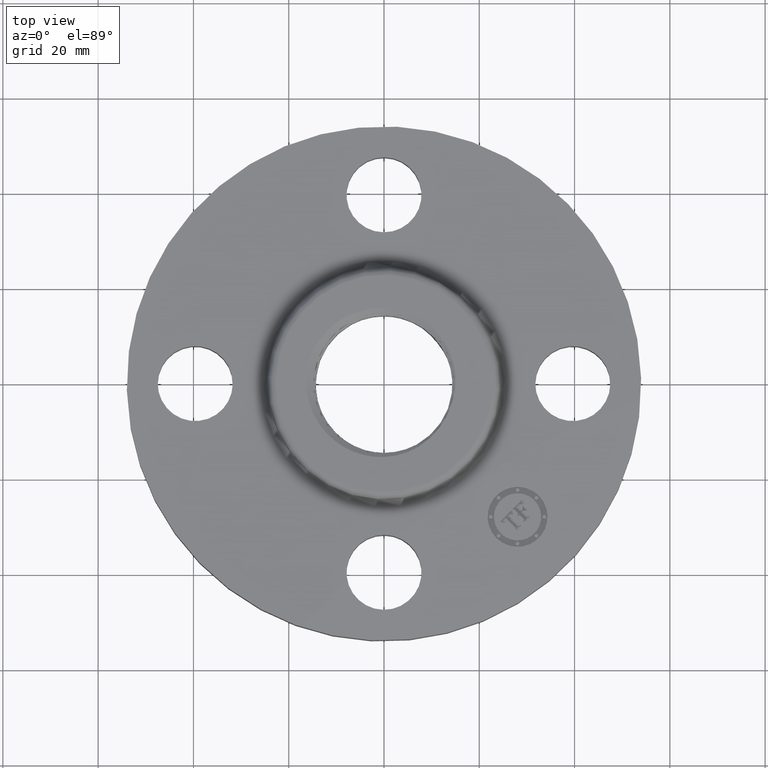
[diagram: clean part render]
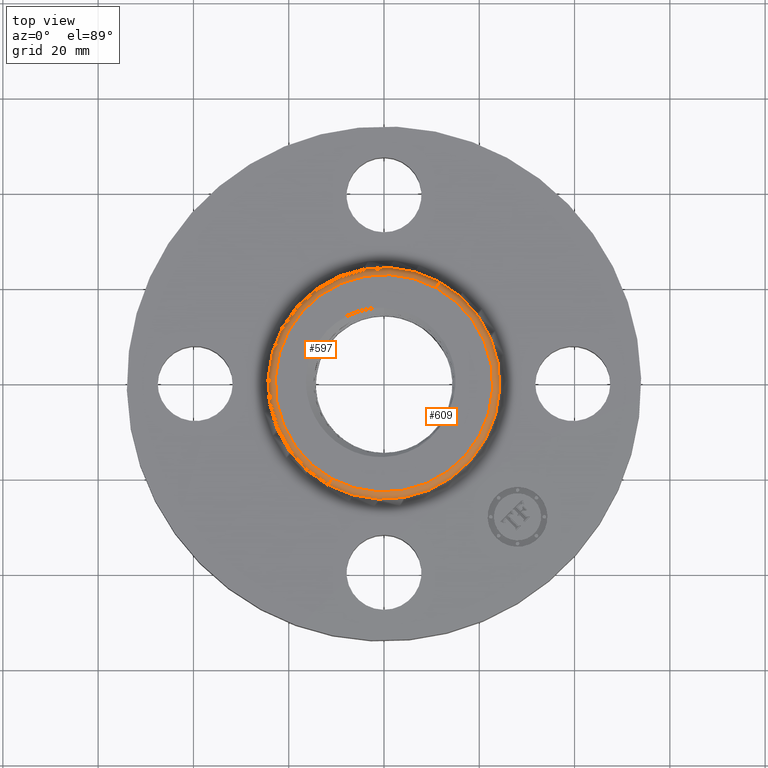
[diagram: same view with one multi-face feature highlighted, each face labeled with its STEP entity id]
A machine part, top view. The highlighted faces form ONE feature: a constant-radius fillet chain: 2 tangent blend faces with common blend radius 1.524 mm. The faces share edges in the B-rep.
Their STEP definitions:
[1] entity #597 (Torus):
#181=AXIS2_PLACEMENT_3D('Circle Axis2P3D',#179,#180,$) ;
#570=AXIS2_PLACEMENT_3D('Torus Axis2P3D',#567,#568,#569) ;
#574=AXIS2_PLACEMENT_3D('Circle Axis2P3D',#572,#573,$) ;
#583=AXIS2_PLACEMENT_3D('Circle Axis2P3D',#581,#582,$) ;
#588=AXIS2_PLACEMENT_3D('Circle Axis2P3D',#586,#587,$) ;
#174=CARTESIAN_POINT('Vertex',(0.430761345967,0.788503354781,0.620000000002)) ;
#176=CARTESIAN_POINT('Vertex',(-0.430761345967,-0.788503354781,0.620000000002)) ;
#179=CARTESIAN_POINT('Axis2P3D Location',(0.,0.,0.620000000002)) ;
#567=CARTESIAN_POINT('Axis2P3D Location',(0.,0.,0.560000000002)) ;
#572=CARTESIAN_POINT('Axis2P3D Location',(0.,0.,0.570418890662)) ;
#576=CARTESIAN_POINT('Vertex',(-0.459089865212,-0.840358361433,0.570418890662)) ;
#578=CARTESIAN_POINT('Vertex',(0.459089865212,0.840358361433,0.570418890662)) ;
#581=CARTESIAN_POINT('Axis2P3D Location',(-0.430761345967,-0.788503354781,0.560000000002)) ;
#586=CARTESIAN_POINT('Axis2P3D Location',(0.430761345967,0.788503354781,0.560000000002)) ;
#180=DIRECTION('Axis2P3D Direction',(0.,0.,-0.0393700787402)) ;
#568=DIRECTION('Axis2P3D Direction',(0.,0.,-0.0393700787402)) ;
#569=DIRECTION('Axis2P3D XDirection',(0.0188750212049,0.0345504945626,0.)) ;
#573=DIRECTION('Axis2P3D Direction',(0.,0.,-0.0393700787402)) ;
#582=DIRECTION('Axis2P3D Direction',(0.0345504945626,-0.0188750212049,0.)) ;
#587=DIRECTION('Axis2P3D Direction',(-0.0345504945626,0.0188750212049,0.)) ;
#592=ORIENTED_EDGE('',*,*,#580,.F.) ;
#593=ORIENTED_EDGE('',*,*,#585,.T.) ;
#594=ORIENTED_EDGE('',*,*,#183,.T.) ;
#595=ORIENTED_EDGE('',*,*,#590,.F.) ;
#597=ADVANCED_FACE('PartBody',(#596),#571,.T.) ;
#182=CIRCLE('generated circle',#181,0.898494784448) ;
#575=CIRCLE('generated circle',#574,0.957583249629) ;
#584=CIRCLE('generated circle',#583,0.0600000000002) ;
#589=CIRCLE('generated circle',#588,0.0600000000002) ;
#571=TOROIDAL_SURFACE('homeo Torus',#570,0.898494784448,0.0600000000002) ;
#183=EDGE_CURVE('',#177,#175,#182,.T.) ;
#580=EDGE_CURVE('',#577,#579,#575,.T.) ;
#585=EDGE_CURVE('',#577,#177,#584,.F.) ;
#590=EDGE_CURVE('',#579,#175,#589,.F.) ;
#591=EDGE_LOOP('',(#592,#593,#594,#595)) ;
#596=FACE_OUTER_BOUND('',#591,.T.) ;
#175=VERTEX_POINT('',#174) ;
#177=VERTEX_POINT('',#176) ;
#577=VERTEX_POINT('',#576) ;
#579=VERTEX_POINT('',#578) ;
[2] entity #609 (Torus):
#172=AXIS2_PLACEMENT_3D('Circle Axis2P3D',#170,#171,$) ;
#570=AXIS2_PLACEMENT_3D('Torus Axis2P3D',#567,#568,#569) ;
#583=AXIS2_PLACEMENT_3D('Circle Axis2P3D',#581,#582,$) ;
#588=AXIS2_PLACEMENT_3D('Circle Axis2P3D',#586,#587,$) ;
#600=AXIS2_PLACEMENT_3D('Circle Axis2P3D',#598,#599,$) ;
#170=CARTESIAN_POINT('Axis2P3D Location',(0.,0.,0.620000000002)) ;
#174=CARTESIAN_POINT('Vertex',(0.430761345967,0.788503354781,0.620000000002)) ;
#176=CARTESIAN_POINT('Vertex',(-0.430761345967,-0.788503354781,0.620000000002)) ;
#567=CARTESIAN_POINT('Axis2P3D Location',(0.,0.,0.560000000002)) ;
#576=CARTESIAN_POINT('Vertex',(-0.459089865212,-0.840358361433,0.570418890662)) ;
#578=CARTESIAN_POINT('Vertex',(0.459089865212,0.840358361433,0.570418890662)) ;
#581=CARTESIAN_POINT('Axis2P3D Location',(-0.430761345967,-0.788503354781,0.560000000002)) ;
#586=CARTESIAN_POINT('Axis2P3D Location',(0.430761345967,0.788503354781,0.560000000002)) ;
#598=CARTESIAN_POINT('Axis2P3D Location',(0.,0.,0.570418890662)) ;
#171=DIRECTION('Axis2P3D Direction',(0.,0.,-0.0393700787402)) ;
#568=DIRECTION('Axis2P3D Direction',(0.,0.,-0.0393700787402)) ;
#569=DIRECTION('Axis2P3D XDirection',(0.0188750212049,0.0345504945626,0.)) ;
#582=DIRECTION('Axis2P3D Direction',(0.0345504945626,-0.0188750212049,0.)) ;
#587=DIRECTION('Axis2P3D Direction',(-0.0345504945626,0.0188750212049,0.)) ;
#599=DIRECTION('Axis2P3D Direction',(0.,0.,-0.0393700787402)) ;
#604=ORIENTED_EDGE('',*,*,#602,.F.) ;
#605=ORIENTED_EDGE('',*,*,#590,.T.) ;
#606=ORIENTED_EDGE('',*,*,#178,.T.) ;
#607=ORIENTED_EDGE('',*,*,#585,.F.) ;
#609=ADVANCED_FACE('PartBody',(#608),#571,.T.) ;
#173=CIRCLE('generated circle',#172,0.898494784448) ;
#584=CIRCLE('generated circle',#583,0.0600000000002) ;
#589=CIRCLE('generated circle',#588,0.0600000000002) ;
#601=CIRCLE('generated circle',#600,0.957583249629) ;
#571=TOROIDAL_SURFACE('homeo Torus',#570,0.898494784448,0.0600000000002) ;
#178=EDGE_CURVE('',#175,#177,#173,.T.) ;
#585=EDGE_CURVE('',#577,#177,#584,.F.) ;
#590=EDGE_CURVE('',#579,#175,#589,.F.) ;
#602=EDGE_CURVE('',#579,#577,#601,.T.) ;
#603=EDGE_LOOP('',(#604,#605,#606,#607)) ;
#608=FACE_OUTER_BOUND('',#603,.T.) ;
#175=VERTEX_POINT('',#174) ;
#177=VERTEX_POINT('',#176) ;
#577=VERTEX_POINT('',#576) ;
#579=VERTEX_POINT('',#578) ;